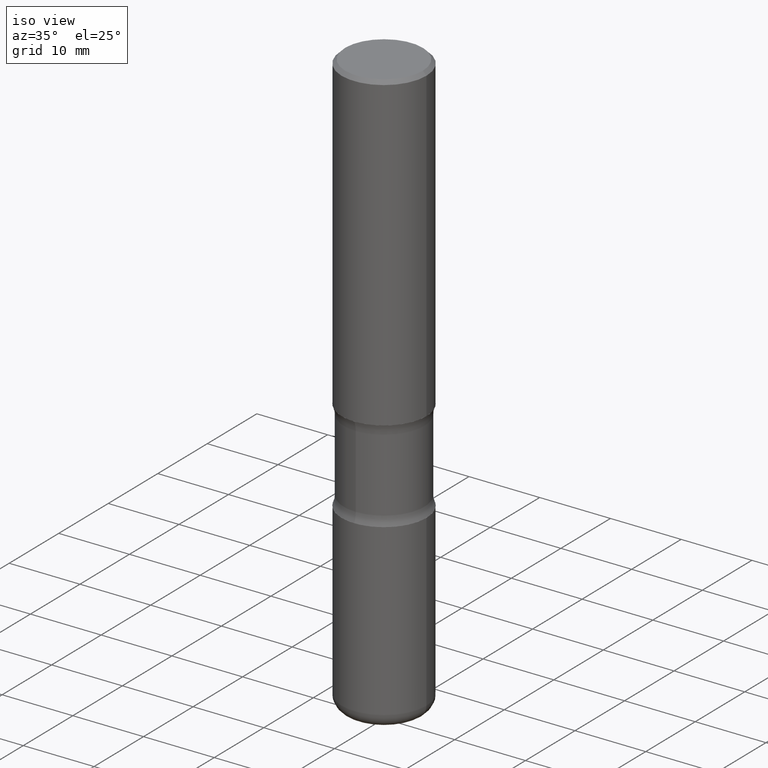
[diagram: clean part render]
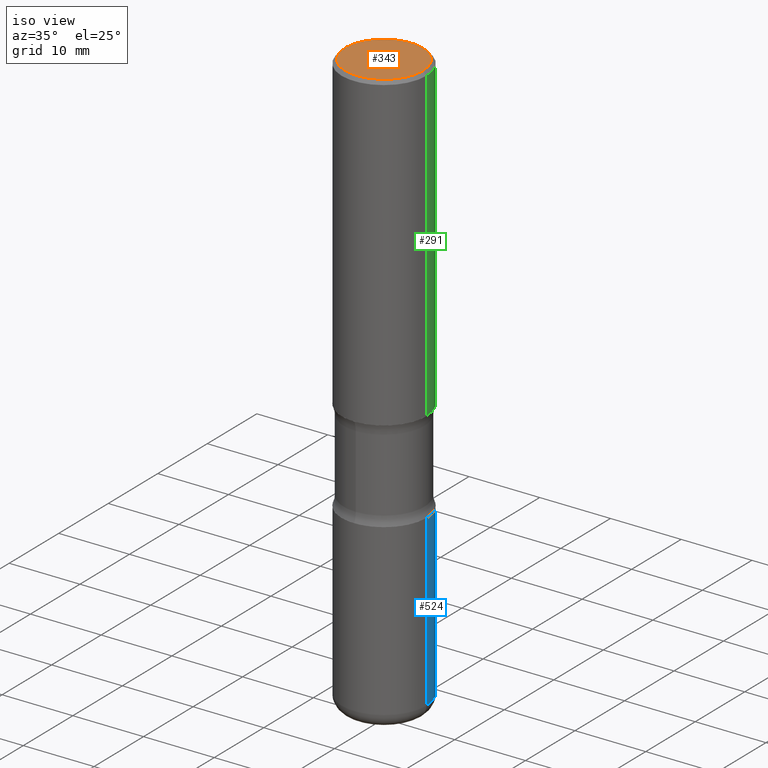
[diagram: same view with three faces highlighted in distinct colors, each labeled with its STEP entity id]
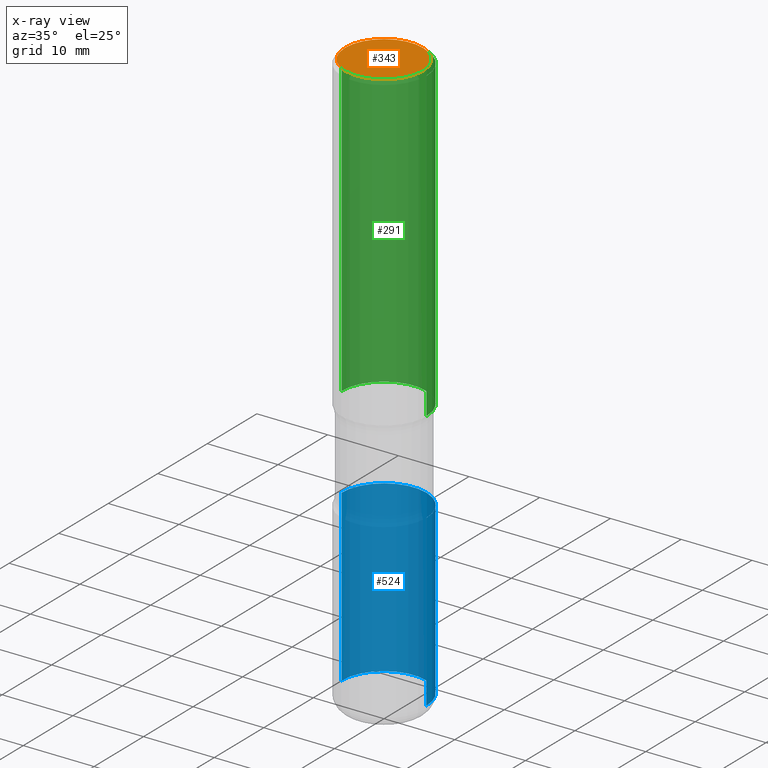
[diagram: x-ray of the same camera — body ghosted, the three highlighted faces saturated]
A machine part, iso view with three faces highlighted in distinct colors.
The next image is the same camera in x-ray (body ghosted, the three faces saturated) — at least one of them is partly hidden behind the body in this view.
Their STEP definitions:

[orange] entity #343 — the highlighted planar face has unit normal (0, -0, -1).
#18 = EDGE_CURVE ( 'NONE', #84, #348, #438, .T. ) ;
#29 = CARTESIAN_POINT ( 'NONE',  ( 4.175405657340879278E-46, -5.961372681521788801E-32, -1.707404996040164512E-17 ) ) ;
#69 = CARTESIAN_POINT ( 'NONE',  ( -0.2161999999999999755, 1.544631344304202170E-15, -1.707404996041232555E-17 ) ) ;
#84 = VERTEX_POINT ( 'NONE', #310 ) ;
#90 = ORIENTED_EDGE ( 'NONE', *, *, #18, .T. ) ;
#105 = DIRECTION ( 'NONE',  ( -2.445468806185136597E-29, 3.491481338843145583E-15, 1.000000000000000000 ) ) ;
#111 = ORIENTED_EDGE ( 'NONE', *, *, #245, .T. ) ;
#158 = DIRECTION ( 'NONE',  ( -1.000000000000000000, 6.982962677686265922E-15, -4.876176775795935793E-29 ) ) ;
#210 = DIRECTION ( 'NONE',  ( 1.000000000000000000, -6.982962677686266711E-15, 4.875778670202486388E-29 ) ) ;
#232 = DIRECTION ( 'NONE',  ( 1.000000000000000000, -6.982962677686266711E-15, 4.875778670202486388E-29 ) ) ;
#245 = EDGE_CURVE ( 'NONE', #348, #84, #404, .T. ) ;
#255 = AXIS2_PLACEMENT_3D ( 'NONE', #494, #550, #158 ) ;
#310 = CARTESIAN_POINT ( 'NONE',  ( 0.2161999999999999755, -1.586759460484352185E-15, -1.707404996039081677E-17 ) ) ;
#315 = AXIS2_PLACEMENT_3D ( 'NONE', #29, #105, #232 ) ;
#343 = ADVANCED_FACE ( 'NONE', ( #544 ), #448, .F. ) ;
#348 = VERTEX_POINT ( 'NONE', #69 ) ;
#390 = EDGE_LOOP ( 'NONE', ( #111, #90 ) ) ;
#404 = CIRCLE ( 'NONE', #315, 0.2161999999999999755 ) ;
#438 = CIRCLE ( 'NONE', #453, 0.2161999999999999755 ) ;
#448 = PLANE ( 'NONE',  #255 ) ;
#453 = AXIS2_PLACEMENT_3D ( 'NONE', #516, #559, #210 ) ;
#494 = CARTESIAN_POINT ( 'NONE',  ( 1.509716530915770520E-15, 0.2161999999999999755, -7.633952904380887760E-16 ) ) ;
#516 = CARTESIAN_POINT ( 'NONE',  ( 4.175405657340879278E-46, -5.961372681521788801E-32, -1.707404996040164512E-17 ) ) ;
#544 = FACE_OUTER_BOUND ( 'NONE', #390, .T. ) ;
#550 = DIRECTION ( 'NONE',  ( 2.438088387897960049E-29, -3.491481338843145188E-15, -1.000000000000000000 ) ) ;
#559 = DIRECTION ( 'NONE',  ( -2.445468806185136597E-29, 3.491481338843145583E-15, 1.000000000000000000 ) ) ;

[blue] entity #524 — the highlighted cylindrical surface (partial cylindrical patch) has radius 5.9995 mm, axis along (-0, 0, 1).
#26 = VECTOR ( 'NONE', #410, 39.37007874015748143 ) ;
#37 = VERTEX_POINT ( 'NONE', #167 ) ;
#38 = VERTEX_POINT ( 'NONE', #211 ) ;
#60 = CIRCLE ( 'NONE', #503, 0.2362000000000004374 ) ;
#93 = DIRECTION ( 'NONE',  ( -2.445468806185136597E-29, 3.491481338843145583E-15, 1.000000000000000000 ) ) ;
#110 = CARTESIAN_POINT ( 'NONE',  ( 0.2362000000000004651, -1.649375784469499483E-15, 1.151752954443002330E-29 ) ) ;
#130 = DIRECTION ( 'NONE',  ( -2.445468806185136597E-29, 3.491481338843145583E-15, 1.000000000000000000 ) ) ;
#167 = CARTESIAN_POINT ( 'NONE',  ( 0.2362000000000006317, -1.278370977404029278E-14, -3.189000000000000501 ) ) ;
#175 = FACE_OUTER_BOUND ( 'NONE', #515, .T. ) ;
#189 = EDGE_CURVE ( 'NONE', #206, #38, #260, .T. ) ;
#196 = EDGE_CURVE ( 'NONE', #551, #38, #60, .T. ) ;
#206 = VERTEX_POINT ( 'NONE', #522 ) ;
#207 = CARTESIAN_POINT ( 'NONE',  ( 7.798600022924401307E-29, -1.113433398957079310E-14, -3.189000000000000501 ) ) ;
#211 = CARTESIAN_POINT ( 'NONE',  ( -0.2362000000000004374, -7.806481689168991326E-15, -2.244100000000001760 ) ) ;
#217 = DIRECTION ( 'NONE',  ( 1.000000000000000000, -6.982962677686266711E-15, 4.876176775795935793E-29 ) ) ;
#231 = VECTOR ( 'NONE', #402, 39.37007874015748143 ) ;
#254 = AXIS2_PLACEMENT_3D ( 'NONE', #207, #341, #465 ) ;
#259 = EDGE_CURVE ( 'NONE', #37, #551, #500, .T. ) ;
#260 = LINE ( 'NONE', #477, #231 ) ;
#307 = ORIENTED_EDGE ( 'NONE', *, *, #189, .T. ) ;
#311 = CYLINDRICAL_SURFACE ( 'NONE', #444, 0.2362000000000004651 ) ;
#318 = CARTESIAN_POINT ( 'NONE',  ( 0.2362000000000004374, -9.484609056967408331E-15, -2.244100000000001760 ) ) ;
#326 = ORIENTED_EDGE ( 'NONE', *, *, #196, .F. ) ;
#333 = ORIENTED_EDGE ( 'NONE', *, *, #259, .F. ) ;
#341 = DIRECTION ( 'NONE',  ( -2.445468806185136597E-29, 3.491481338843145583E-15, 1.000000000000000000 ) ) ;
#354 = DIRECTION ( 'NONE',  ( 1.000000000000000000, -6.982962677686264344E-15, 0.000000000000000000 ) ) ;
#402 = DIRECTION ( 'NONE',  ( -2.445468806185136877E-29, 3.491481338843145188E-15, 1.000000000000000000 ) ) ;
#405 = CARTESIAN_POINT ( 'NONE',  ( 5.487876547960070357E-29, -7.835233272497908651E-15, -2.244100000000001760 ) ) ;
#410 = DIRECTION ( 'NONE',  ( -2.445468806185136877E-29, 3.491481338843145188E-15, 1.000000000000000000 ) ) ;
#424 = ORIENTED_EDGE ( 'NONE', *, *, #458, .T. ) ;
#444 = AXIS2_PLACEMENT_3D ( 'NONE', #478, #93, #217 ) ;
#458 = EDGE_CURVE ( 'NONE', #37, #206, #537, .T. ) ;
#465 = DIRECTION ( 'NONE',  ( 1.000000000000000000, -6.982962677686264344E-15, 0.000000000000000000 ) ) ;
#477 = CARTESIAN_POINT ( 'NONE',  ( -0.2362000000000004651, 1.678301941865359944E-15, -1.161852468318210999E-29 ) ) ;
#478 = CARTESIAN_POINT ( 'NONE',  ( 0.000000000000000000, 0.000000000000000000, 0.000000000000000000 ) ) ;
#500 = LINE ( 'NONE', #110, #26 ) ;
#503 = AXIS2_PLACEMENT_3D ( 'NONE', #405, #130, #354 ) ;
#515 = EDGE_LOOP ( 'NONE', ( #424, #307, #326, #333 ) ) ;
#522 = CARTESIAN_POINT ( 'NONE',  ( -0.2362000000000006317, -9.456032047705431974E-15, -3.189000000000000501 ) ) ;
#524 = ADVANCED_FACE ( 'NONE', ( #175 ), #311, .T. ) ;
#537 = CIRCLE ( 'NONE', #254, 0.2362000000000005484 ) ;
#551 = VERTEX_POINT ( 'NONE', #318 ) ;

[green] entity #291 — the highlighted cylindrical surface (partial cylindrical patch) has radius 5.9995 mm, axis along (-0, 0, 1).
#6 = LINE ( 'NONE', #220, #358 ) ;
#13 = DIRECTION ( 'NONE',  ( -2.445468806185136877E-29, 3.491481338843145188E-15, 1.000000000000000000 ) ) ;
#73 = CARTESIAN_POINT ( 'NONE',  ( 0.000000000000000000, 0.000000000000000000, 0.000000000000000000 ) ) ;
#88 = EDGE_CURVE ( 'NONE', #495, #384, #6, .T. ) ;
#94 = AXIS2_PLACEMENT_3D ( 'NONE', #366, #276, #233 ) ;
#107 = DIRECTION ( 'NONE',  ( -2.445468806185136877E-29, 3.491481338843145188E-15, 1.000000000000000000 ) ) ;
#115 = ORIENTED_EDGE ( 'NONE', *, *, #328, .T. ) ;
#144 = DIRECTION ( 'NONE',  ( 1.000000000000000000, -6.982962677686266711E-15, 0.000000000000000000 ) ) ;
#192 = VERTEX_POINT ( 'NONE', #361 ) ;
#197 = DIRECTION ( 'NONE',  ( -2.445468806185136597E-29, 3.491481338843145583E-15, 1.000000000000000000 ) ) ;
#203 = LINE ( 'NONE', #379, #455 ) ;
#214 = CIRCLE ( 'NONE', #94, 0.2362000000000004651 ) ;
#220 = CARTESIAN_POINT ( 'NONE',  ( -0.2362000000000002709, 1.678301941865358564E-15, -1.161852468318210018E-29 ) ) ;
#233 = DIRECTION ( 'NONE',  ( 1.000000000000000000, -6.982962677686266711E-15, 0.000000000000000000 ) ) ;
#242 = ORIENTED_EDGE ( 'NONE', *, *, #320, .F. ) ;
#243 = DIRECTION ( 'NONE',  ( -2.445468806185136597E-29, 3.491481338843145583E-15, 1.000000000000000000 ) ) ;
#256 = CARTESIAN_POINT ( 'NONE',  ( -0.2362000000000004651, -1.380759433162061850E-15, -1.732300000000001061 ) ) ;
#272 = EDGE_CURVE ( 'NONE', #192, #384, #426, .T. ) ;
#276 = DIRECTION ( 'NONE',  ( -2.445468806185136597E-29, 3.491481338843145583E-15, 1.000000000000000000 ) ) ;
#291 = ADVANCED_FACE ( 'NONE', ( #336 ), #546, .T. ) ;
#298 = AXIS2_PLACEMENT_3D ( 'NONE', #371, #197, #144 ) ;
#320 = EDGE_CURVE ( 'NONE', #376, #192, #203, .T. ) ;
#328 = EDGE_CURVE ( 'NONE', #376, #495, #214, .T. ) ;
#336 = FACE_OUTER_BOUND ( 'NONE', #560, .T. ) ;
#358 = VECTOR ( 'NONE', #13, 39.37007874015748143 ) ;
#361 = CARTESIAN_POINT ( 'NONE',  ( 0.2362000000000000766, -1.690279253850499560E-15, -0.02000000000000013572 ) ) ;
#366 = CARTESIAN_POINT ( 'NONE',  ( 4.236285612954515195E-29, -6.048293123277985022E-15, -1.732300000000001061 ) ) ;
#371 = CARTESIAN_POINT ( 'NONE',  ( 4.890937612370306439E-31, -6.982962677686338448E-17, -0.02000000000000013572 ) ) ;
#372 = ORIENTED_EDGE ( 'NONE', *, *, #88, .T. ) ;
#375 = DIRECTION ( 'NONE',  ( 1.000000000000000000, -6.982962677686266711E-15, 4.876176775795936353E-29 ) ) ;
#376 = VERTEX_POINT ( 'NONE', #461 ) ;
#379 = CARTESIAN_POINT ( 'NONE',  ( 0.2362000000000002709, -1.649375784469498103E-15, 1.151752954443001489E-29 ) ) ;
#384 = VERTEX_POINT ( 'NONE', #434 ) ;
#421 = AXIS2_PLACEMENT_3D ( 'NONE', #73, #243, #375 ) ;
#426 = CIRCLE ( 'NONE', #298, 0.2362000000000000766 ) ;
#434 = CARTESIAN_POINT ( 'NONE',  ( -0.2362000000000000766, 1.579546157692633424E-15, -0.02000000000000013572 ) ) ;
#455 = VECTOR ( 'NONE', #107, 39.37007874015748143 ) ;
#461 = CARTESIAN_POINT ( 'NONE',  ( 0.2362000000000004651, -7.697668907747484703E-15, -1.732300000000001061 ) ) ;
#495 = VERTEX_POINT ( 'NONE', #256 ) ;
#498 = ORIENTED_EDGE ( 'NONE', *, *, #272, .F. ) ;
#546 = CYLINDRICAL_SURFACE ( 'NONE', #421, 0.2362000000000002709 ) ;
#560 = EDGE_LOOP ( 'NONE', ( #115, #372, #498, #242 ) ) ;